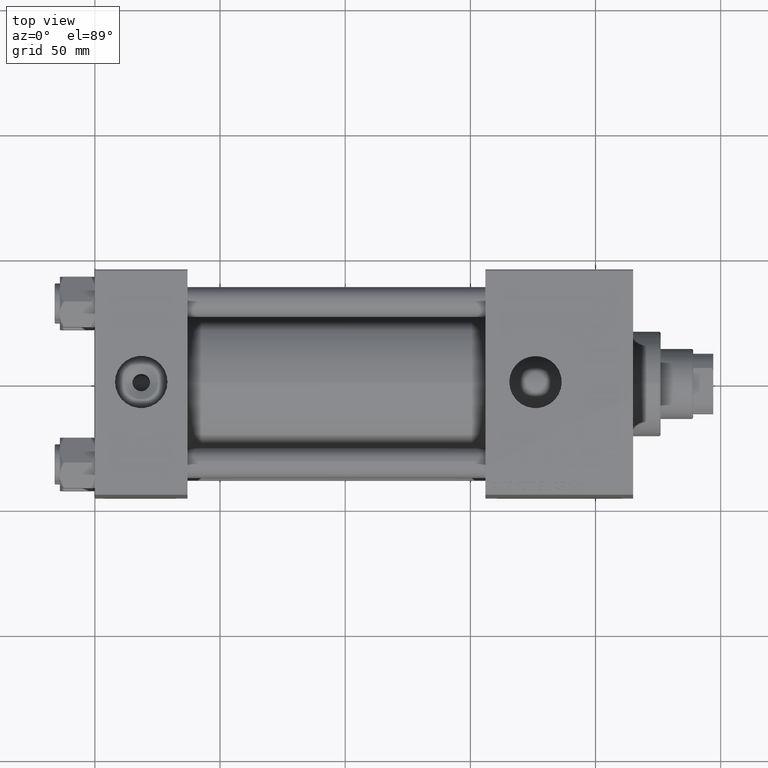
[diagram: clean part render]
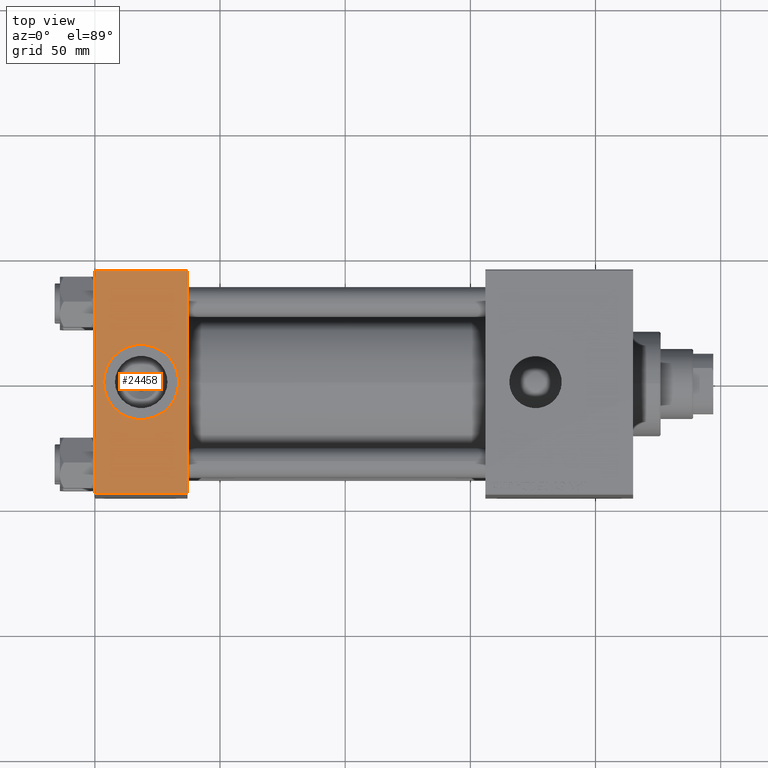
[diagram: same view with one face highlighted and labeled with its STEP entity id]
A machine part, top view. The second image highlights one B-rep face of the part: STEP entity #24458.
In plain terms, the highlighted planar face has unit normal (0, 0, -1).
Its self-contained STEP definition (entity closure, byte-faithful):
#74 = AXIS2_PLACEMENT_3D ( 'NONE', #36260, #39849, #12846 ) ;
#326 = EDGE_LOOP ( 'NONE', ( #3512, #29538 ) ) ;
#1121 = PLANE ( 'NONE',  #74 ) ;
#1853 = EDGE_CURVE ( 'NONE', #2341, #32851, #6664, .T. ) ;
#2232 = CIRCLE ( 'NONE', #30715, 15.00000000000000355 ) ;
#2341 = VERTEX_POINT ( 'NONE', #48480 ) ;
#3404 = VERTEX_POINT ( 'NONE', #49705 ) ;
#3486 = ORIENTED_EDGE ( 'NONE', *, *, #13039, .T. ) ;
#3512 = ORIENTED_EDGE ( 'NONE', *, *, #1853, .F. ) ;
#4789 = CARTESIAN_POINT ( 'NONE',  ( 0.000000000000000000, 44.49999999999998579, 45.00000000000001421 ) ) ;
#5199 = FACE_OUTER_BOUND ( 'NONE', #45274, .T. ) ;
#5220 = CARTESIAN_POINT ( 'NONE',  ( 37.00000000000000000, -44.49999999999995737, 45.00000000000000000 ) ) ;
#6664 = CIRCLE ( 'NONE', #24572, 15.00000000000000355 ) ;
#7205 = DIRECTION ( 'NONE',  ( 1.000000000000000000, 0.000000000000000000, 0.000000000000000000 ) ) ;
#8076 = VERTEX_POINT ( 'NONE', #5220 ) ;
#8887 = DIRECTION ( 'NONE',  ( 0.000000000000000000, -1.000000000000000000, -1.541976423090495387E-16 ) ) ;
#11033 = CARTESIAN_POINT ( 'NONE',  ( 37.00000000000000000, -44.49999999999998579, 45.00000000000000000 ) ) ;
#12846 = DIRECTION ( 'NONE',  ( 0.000000000000000000, 1.000000000000000000, 1.541976423090495633E-16 ) ) ;
#13039 = EDGE_CURVE ( 'NONE', #20242, #8076, #39280, .T. ) ;
#16355 = VECTOR ( 'NONE', #8887, 1000.000000000000000 ) ;
#16451 = CARTESIAN_POINT ( 'NONE',  ( 0.000000000000000000, 44.99999999999998579, 45.00000000000001421 ) ) ;
#16455 = EDGE_CURVE ( 'NONE', #32851, #2341, #2232, .T. ) ;
#18414 = VECTOR ( 'NONE', #7205, 1000.000000000000000 ) ;
#20242 = VERTEX_POINT ( 'NONE', #33621 ) ;
#20448 = ORIENTED_EDGE ( 'NONE', *, *, #38592, .T. ) ;
#21327 = EDGE_CURVE ( 'NONE', #3404, #35523, #44289, .T. ) ;
#22776 = DIRECTION ( 'NONE',  ( 1.000000000000000000, 0.000000000000000000, 0.000000000000000000 ) ) ;
#24312 = FACE_BOUND ( 'NONE', #326, .T. ) ;
#24388 = VECTOR ( 'NONE', #48358, 1000.000000000000000 ) ;
#24445 = CARTESIAN_POINT ( 'NONE',  ( 3.499999999999997780, -6.836647181163008250E-15, 45.00000000000000711 ) ) ;
#24458 = ADVANCED_FACE ( 'NONE', ( #24312, #5199 ), #1121, .F. ) ;
#24572 = AXIS2_PLACEMENT_3D ( 'NONE', #42112, #50000, #22776 ) ;
#27779 = ORIENTED_EDGE ( 'NONE', *, *, #46098, .F. ) ;
#28535 = LINE ( 'NONE', #44732, #16355 ) ;
#28675 = CARTESIAN_POINT ( 'NONE',  ( 18.50000000000000000, -8.673617379884038628E-15, 45.00000000000000711 ) ) ;
#29538 = ORIENTED_EDGE ( 'NONE', *, *, #16455, .F. ) ;
#30715 = AXIS2_PLACEMENT_3D ( 'NONE', #28675, #44195, #47258 ) ;
#31819 = CARTESIAN_POINT ( 'NONE',  ( 0.000000000000000000, 44.49999999999998579, 45.00000000000001421 ) ) ;
#32607 = ORIENTED_EDGE ( 'NONE', *, *, #21327, .T. ) ;
#32851 = VERTEX_POINT ( 'NONE', #24445 ) ;
#33621 = CARTESIAN_POINT ( 'NONE',  ( 0.000000000000000000, -44.49999999999995737, 45.00000000000000000 ) ) ;
#35523 = VERTEX_POINT ( 'NONE', #4789 ) ;
#35759 = DIRECTION ( 'NONE',  ( 0.000000000000000000, -1.000000000000000000, -1.541976423090495387E-16 ) ) ;
#36260 = CARTESIAN_POINT ( 'NONE',  ( 37.00000000000000000, 44.99999999999998579, 45.00000000000001421 ) ) ;
#38592 = EDGE_CURVE ( 'NONE', #35523, #20242, #39864, .T. ) ;
#39280 = LINE ( 'NONE', #11033, #18414 ) ;
#39849 = DIRECTION ( 'NONE',  ( 0.000000000000000000, 1.541976423090495633E-16, -1.000000000000000000 ) ) ;
#39864 = LINE ( 'NONE', #16451, #44345 ) ;
#42112 = CARTESIAN_POINT ( 'NONE',  ( 18.50000000000000000, -8.673617379884038628E-15, 45.00000000000000711 ) ) ;
#44195 = DIRECTION ( 'NONE',  ( 0.000000000000000000, 0.000000000000000000, 1.000000000000000000 ) ) ;
#44289 = LINE ( 'NONE', #31819, #24388 ) ;
#44345 = VECTOR ( 'NONE', #35759, 1000.000000000000000 ) ;
#44732 = CARTESIAN_POINT ( 'NONE',  ( 37.00000000000000000, 44.99999999999998579, 45.00000000000001421 ) ) ;
#45274 = EDGE_LOOP ( 'NONE', ( #20448, #3486, #27779, #32607 ) ) ;
#46098 = EDGE_CURVE ( 'NONE', #3404, #8076, #28535, .T. ) ;
#47258 = DIRECTION ( 'NONE',  ( 1.000000000000000000, 0.000000000000000000, 0.000000000000000000 ) ) ;
#48358 = DIRECTION ( 'NONE',  ( -1.000000000000000000, 0.000000000000000000, 0.000000000000000000 ) ) ;
#48480 = CARTESIAN_POINT ( 'NONE',  ( 33.50000000000000000, -8.673617379884038628E-15, 45.00000000000000711 ) ) ;
#49705 = CARTESIAN_POINT ( 'NONE',  ( 37.00000000000000000, 44.49999999999998579, 45.00000000000001421 ) ) ;
#50000 = DIRECTION ( 'NONE',  ( 0.000000000000000000, 0.000000000000000000, 1.000000000000000000 ) ) ;